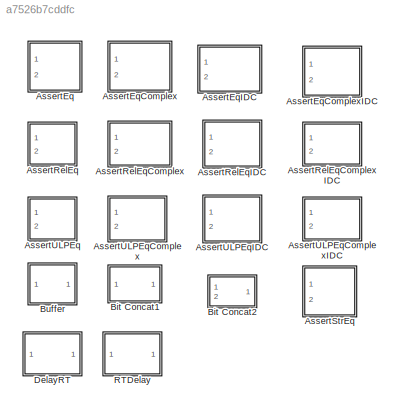
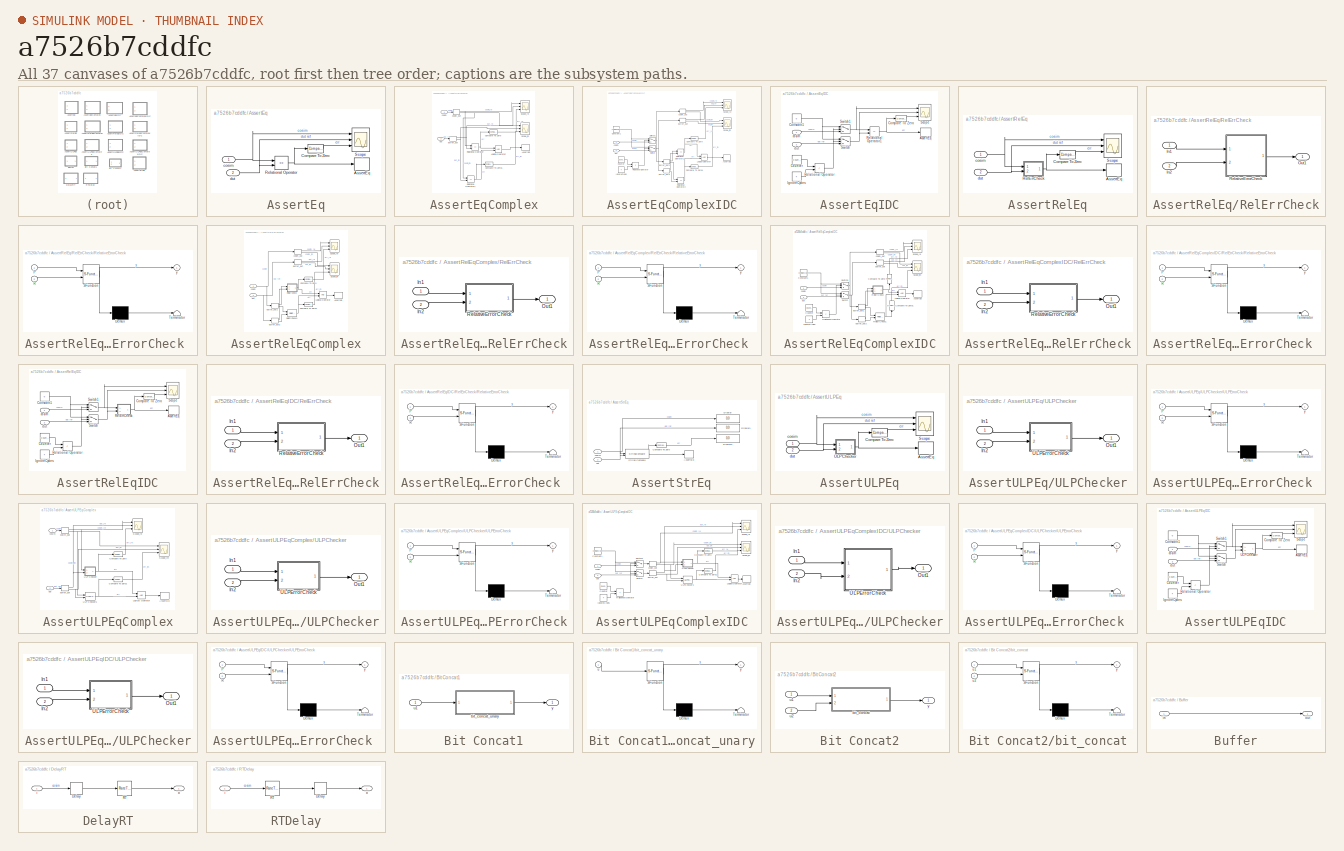
[diagram: thumbnail index - all 37 canvases of the model, root first then tree order]
MODEL slx_a7526b7cddfc
KIND library
CONFIG AbsTol = auto
CONFIG EnableMultiTasking = on
CONFIG FixedStep = 1
CONFIG MaxStep = auto
CONFIG MinStep = auto
CONFIG RelTol = 1e-3
CONFIG SampleTimeConstraint = Unconstrained
CONFIG Solver = FixedStepDiscrete
CONFIG SolverName = FixedStepDiscrete
CONFIG StartTime = 0.0
CONFIG StopTime = 10.0
BLOCK [SubSystem] AssertEq
  Ports = [2]
  RequestExecContextInheritance = off
BLOCK [Assertion] AssertEq/AssertEq
  StopWhenAssertionFail = off
BLOCK [Reference] AssertEq/Compare To Zero  REF=simulink/Logic and Bit
Operations/Compare
To Zero
  Ports = [1, 1]
  SourceBlock = simulink/Logic and Bit\nOperations/Compare\nTo Zero
  SourceProductBaseCode = SL
  SourceProductName = Simulink
  SourceType = Compare To Zero
BLOCK [RelationalOperator] AssertEq/Relational Operator
  InputSameDT = off
  Operator = ==
  OutDataTypeStr = boolean
  Ports = [2, 1]
BLOCK [Scope] AssertEq/Scope
  Floating = off
  NumInputPorts = 3
  Ports = [3]
  ScopeSpecificationString = Simulink.scopes.TimeScopeBlockCfg('CurrentConfiguration', extmgr.ConfigurationSet(extmgr.Configuration('Core','General UI',true,'MessageLogAutoOpenMode','for warn/fail messages','ShowCloseAll',true,'ShowBringAllForward',true),extmgr.Configuration('Core','Source UI',true,'PlaybackToolbar',true),extmgr.Configuration('Sources','WiredSimulink',true,'PointsPerSignal',50000,'DataLoggingDecimation','1','...<+3251ch>
BLOCK [Inport] AssertEq/cosim
  IconDisplay = Port number
BLOCK [Inport] AssertEq/dut
  IconDisplay = Port number
  Port = 2
BLOCK [SubSystem] AssertEqComplex
  Ports = [2]
  RequestExecContextInheritance = off
BLOCK [Assertion] AssertEqComplex/AssertEq
  StopWhenAssertionFail = off
BLOCK [Reference] AssertEqComplex/Compare To Zero  REF=simulink/Logic and Bit
Operations/Compare
To Zero
  Ports = [1, 1]
  SourceBlock = simulink/Logic and Bit\nOperations/Compare\nTo Zero
  SourceProductBaseCode = SL
  SourceProductName = Simulink
  SourceType = Compare To Zero
BLOCK [Reference] AssertEqComplex/Compare To Zero1  REF=simulink/Logic and Bit
Operations/Compare
To Zero
  Ports = [1, 1]
  SourceBlock = simulink/Logic and Bit\nOperations/Compare\nTo Zero
  SourceProductBaseCode = SL
  SourceProductName = Simulink
  SourceType = Compare To Zero
BLOCK [Logic] AssertEqComplex/Logical Operator
  AllPortsSameDT = off
  OutDataTypeStr = boolean
  Ports = [2, 1]
BLOCK [RelationalOperator] AssertEqComplex/Relational Operator
  InputSameDT = off
  Operator = ==
  OutDataTypeStr = boolean
  Ports = [2, 1]
BLOCK [RelationalOperator] AssertEqComplex/Relational Operator1
  InputSameDT = off
  Operator = ==
  OutDataTypeStr = boolean
  Ports = [2, 1]
BLOCK [Scope] AssertEqComplex/Scope_im
  Floating = off
  NumInputPorts = 3
  Ports = [3]
  ScopeSpecificationString = Simulink.scopes.TimeScopeBlockCfg('CurrentConfiguration', extmgr.ConfigurationSet(extmgr.Configuration('Core','General UI',true,'MessageLogAutoOpenMode','for warn/fail messages','ShowCloseAll',true,'ShowBringAllForward',true),extmgr.Configuration('Core','Source UI',true,'PlaybackToolbar',true),extmgr.Configuration('Sources','WiredSimulink',true,'PointsPerSignal',50000,'DataLoggingVariableName','Sc...<+3290ch>  <repeated x15 — deduplicated; at blocks: Scope_im, Scope_re, Scope>
BLOCK [Scope] AssertEqComplex/Scope_re
  Floating = off
  NumInputPorts = 3
  Ports = [3]
BLOCK [Inport] AssertEqComplex/cosim
  IconDisplay = Port number
BLOCK [ComplexToRealImag] AssertEqComplex/cosim_out
  Ports = [1, 2]
BLOCK [Inport] AssertEqComplex/dut
  IconDisplay = Port number
  Port = 2
BLOCK [ComplexToRealImag] AssertEqComplex/dutref_out
  Ports = [1, 2]
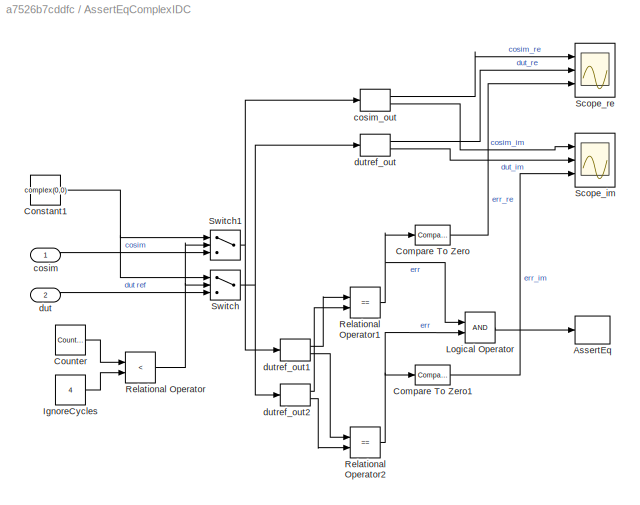
BLOCK [SubSystem] AssertEqComplexIDC
  Ports = [2]
  RequestExecContextInheritance = off
BLOCK [Assertion] AssertEqComplexIDC/AssertEq
  StopWhenAssertionFail = off
BLOCK [Reference] AssertEqComplexIDC/Compare To Zero  REF=simulink/Logic and Bit
Operations/Compare
To Zero
  Ports = [1, 1]
  SourceBlock = simulink/Logic and Bit\nOperations/Compare\nTo Zero
  SourceProductBaseCode = SL
  SourceProductName = Simulink
  SourceType = Compare To Zero
BLOCK [Reference] AssertEqComplexIDC/Compare To Zero1  REF=simulink/Logic and Bit
Operations/Compare
To Zero
  Ports = [1, 1]
  SourceBlock = simulink/Logic and Bit\nOperations/Compare\nTo Zero
  SourceProductBaseCode = SL
  SourceProductName = Simulink
  SourceType = Compare To Zero
BLOCK [Constant] AssertEqComplexIDC/Constant1
  OutDataTypeStr = Inherit: Inherit via back propagation
  SampleTime = -1
  Value = complex(0,0)
BLOCK [Reference] AssertEqComplexIDC/Counter  REF=simulink/Sources/Counter
Free-Running
  Ports = [0, 1]
  SourceBlock = simulink/Sources/Counter\nFree-Running
  SourceProductBaseCode = SL
  SourceProductName = Simulink
  SourceType = Counter Free-Running
BLOCK [Constant] AssertEqComplexIDC/IgnoreCycles
  OutDataTypeStr = Inherit: Inherit via back propagation
  SampleTime = -1
  Value = 4
BLOCK [Logic] AssertEqComplexIDC/Logical Operator
  AllPortsSameDT = off
  OutDataTypeStr = boolean
  Ports = [2, 1]
BLOCK [RelationalOperator] AssertEqComplexIDC/Relational Operator
  InputSameDT = off
  Operator = <
  OutDataTypeStr = boolean
  Ports = [2, 1]
BLOCK [RelationalOperator] AssertEqComplexIDC/Relational Operator1
  InputSameDT = off
  Operator = ==
  OutDataTypeStr = boolean
  Ports = [2, 1]
BLOCK [RelationalOperator] AssertEqComplexIDC/Relational Operator2
  InputSameDT = off
  Operator = ==
  OutDataTypeStr = boolean
  Ports = [2, 1]
BLOCK [Scope] AssertEqComplexIDC/Scope_im
  Floating = off
  NumInputPorts = 3
  Ports = [3]
BLOCK [Scope] AssertEqComplexIDC/Scope_re
  Floating = off
  NumInputPorts = 3
  Ports = [3]
BLOCK [Switch] AssertEqComplexIDC/Switch
  Criteria = u2 ~= 0
  InputSameDT = off
  SaturateOnIntegerOverflow = off
BLOCK [Switch] AssertEqComplexIDC/Switch1
  Criteria = u2 ~= 0
  InputSameDT = off
  SaturateOnIntegerOverflow = off
BLOCK [Inport] AssertEqComplexIDC/cosim
  IconDisplay = Port number
BLOCK [ComplexToRealImag] AssertEqComplexIDC/cosim_out
  Ports = [1, 2]
BLOCK [Inport] AssertEqComplexIDC/dut
  IconDisplay = Port number
  Port = 2
BLOCK [ComplexToRealImag] AssertEqComplexIDC/dutref_out
  Ports = [1, 2]
BLOCK [ComplexToRealImag] AssertEqComplexIDC/dutref_out1
  Ports = [1, 2]
BLOCK [ComplexToRealImag] AssertEqComplexIDC/dutref_out2
  Ports = [1, 2]
BLOCK [SubSystem] AssertEqIDC
  Ports = [2]
  RequestExecContextInheritance = off
BLOCK [Assertion] AssertEqIDC/AssertEq
  StopWhenAssertionFail = off
BLOCK [Reference] AssertEqIDC/Compare To Zero  REF=simulink/Logic and Bit
Operations/Compare
To Zero
  Ports = [1, 1]
  SourceBlock = simulink/Logic and Bit\nOperations/Compare\nTo Zero
  SourceProductBaseCode = SL
  SourceProductName = Simulink
  SourceType = Compare To Zero
BLOCK [Constant] AssertEqIDC/Constant1
  OutDataTypeStr = Inherit: Inherit via back propagation
  SampleTime = -1
  Value = 0
BLOCK [Reference] AssertEqIDC/Counter  REF=simulink/Sources/Counter
Free-Running
  Ports = [0, 1]
  SourceBlock = simulink/Sources/Counter\nFree-Running
  SourceProductBaseCode = SL
  SourceProductName = Simulink
  SourceType = Counter Free-Running
BLOCK [Constant] AssertEqIDC/IgnoreCycles
  OutDataTypeStr = Inherit: Inherit via back propagation
  SampleTime = -1
  Value = 4
BLOCK [RelationalOperator] AssertEqIDC/Relational Operator
  InputSameDT = off
  Operator = <
  OutDataTypeStr = boolean
  Ports = [2, 1]
BLOCK [RelationalOperator] AssertEqIDC/Relational Operator1
  InputSameDT = off
  Operator = ==
  OutDataTypeStr = boolean
  Ports = [2, 1]
BLOCK [Scope] AssertEqIDC/Scope
  Floating = off
  NumInputPorts = 3
  Ports = [3]
BLOCK [Switch] AssertEqIDC/Switch
  Criteria = u2 ~= 0
  InputSameDT = off
  SaturateOnIntegerOverflow = off
BLOCK [Switch] AssertEqIDC/Switch1
  Criteria = u2 ~= 0
  InputSameDT = off
  SaturateOnIntegerOverflow = off
BLOCK [Inport] AssertEqIDC/cosim
  IconDisplay = Port number
BLOCK [Inport] AssertEqIDC/dut
  IconDisplay = Port number
  Port = 2
BLOCK [SubSystem] AssertRelEq
  Ports = [2]
  RequestExecContextInheritance = off
BLOCK [Assertion] AssertRelEq/AssertEq
  StopWhenAssertionFail = off
BLOCK [Reference] AssertRelEq/Compare To Zero  REF=simulink/Logic and Bit
Operations/Compare
To Zero
  Ports = [1, 1]
  SourceBlock = simulink/Logic and Bit\nOperations/Compare\nTo Zero
  SourceProductBaseCode = SL
  SourceProductName = Simulink
  SourceType = Compare To Zero
BLOCK [SubSystem] AssertRelEq/RelErrCheck
  Ports = [2, 1]
  RequestExecContextInheritance = off
BLOCK [Inport] AssertRelEq/RelErrCheck/In1
  IconDisplay = Port number
BLOCK [Inport] AssertRelEq/RelErrCheck/In2
  IconDisplay = Port number
  Port = 2
BLOCK [Outport] AssertRelEq/RelErrCheck/Out1
  IconDisplay = Port number
BLOCK [SubSystem] AssertRelEq/RelErrCheck/RelativeErrorCheck 
  ErrorFcn = Stateflow.Translate.translate
  PermitHierarchicalResolution = ExplicitOnly
  Ports = [2, 1]
  RequestExecContextInheritance = off
  SFBlockType = MATLAB Function
  TreatAsAtomicUnit = on
BLOCK [Demux] AssertRelEq/RelErrCheck/RelativeErrorCheck / Demux 
  Outputs = 1
  Ports = [1, 1]
BLOCK [S-Function] AssertRelEq/RelErrCheck/RelativeErrorCheck / SFunction 
  EnableBusSupport = off
  FunctionName = sf_sfun
  Parameters = ToleranceValue
  PortCounts = [2 2]
  Ports = [2, 2]
  SFcnIsStateOwnerBlock = off
  SFunctionDeploymentMode = off
  Tag = Stateflow S-Function hdlmdlgenlib 8
BLOCK [Terminator] AssertRelEq/RelErrCheck/RelativeErrorCheck / Terminator 
BLOCK [Inport] AssertRelEq/RelErrCheck/RelativeErrorCheck /P
  IconDisplay = Port number
BLOCK [Inport] AssertRelEq/RelErrCheck/RelativeErrorCheck /R
  IconDisplay = Port number
  Port = 2
BLOCK [Outport] AssertRelEq/RelErrCheck/RelativeErrorCheck /y
  IconDisplay = Port number
BLOCK [Scope] AssertRelEq/Scope
  Floating = off
  NumInputPorts = 3
  Ports = [3]
  ScopeSpecificationString = Simulink.scopes.TimeScopeBlockCfg('CurrentConfiguration', extmgr.ConfigurationSet(extmgr.Configuration('Core','General UI',true,'MessageLogAutoOpenMode','for warn/fail messages','ShowCloseAll',true,'ShowBringAllForward',true),extmgr.Configuration('Core','Source UI',true,'PlaybackToolbar',true),extmgr.Configuration('Sources','WiredSimulink',true,'PointsPerSignal',50000,'DataLoggingDecimation','1','...<+3295ch>
BLOCK [Inport] AssertRelEq/cosim
  IconDisplay = Port number
BLOCK [Inport] AssertRelEq/dut
  IconDisplay = Port number
  Port = 2
BLOCK [SubSystem] AssertRelEqComplex
  Ports = [2]
  RequestExecContextInheritance = off
BLOCK [Assertion] AssertRelEqComplex/AssertEq
  StopWhenAssertionFail = off
BLOCK [Reference] AssertRelEqComplex/Compare To Zero  REF=simulink/Logic and Bit
Operations/Compare
To Zero
  Ports = [1, 1]
  SourceBlock = simulink/Logic and Bit\nOperations/Compare\nTo Zero
  SourceProductBaseCode = SL
  SourceProductName = Simulink
  SourceType = Compare To Zero
BLOCK [Reference] AssertRelEqComplex/Compare To Zero1  REF=simulink/Logic and Bit
Operations/Compare
To Zero
  Ports = [1, 1]
  SourceBlock = simulink/Logic and Bit\nOperations/Compare\nTo Zero
  SourceProductBaseCode = SL
  SourceProductName = Simulink
  SourceType = Compare To Zero
BLOCK [Logic] AssertRelEqComplex/Logical Operator
  AllPortsSameDT = off
  OutDataTypeStr = boolean
  Ports = [2, 1]
BLOCK [SubSystem] AssertRelEqComplex/RelErrCheck
  Ports = [2, 1]
  RequestExecContextInheritance = off
BLOCK [Inport] AssertRelEqComplex/RelErrCheck/In1
  IconDisplay = Port number
BLOCK [Inport] AssertRelEqComplex/RelErrCheck/In2
  IconDisplay = Port number
  Port = 2
BLOCK [Outport] AssertRelEqComplex/RelErrCheck/Out1
  IconDisplay = Port number
BLOCK [SubSystem] AssertRelEqComplex/RelErrCheck/RelativeErrorCheck 
  ErrorFcn = Stateflow.Translate.translate
  PermitHierarchicalResolution = ExplicitOnly
  Ports = [2, 1]
  RequestExecContextInheritance = off
  SFBlockType = MATLAB Function
  TreatAsAtomicUnit = on
BLOCK [Demux] AssertRelEqComplex/RelErrCheck/RelativeErrorCheck / Demux 
  Outputs = 1
  Ports = [1, 1]
BLOCK [S-Function] AssertRelEqComplex/RelErrCheck/RelativeErrorCheck / SFunction 
  EnableBusSupport = off
  FunctionName = sf_sfun
  Parameters = ToleranceValue
  PortCounts = [2 2]
  Ports = [2, 2]
  SFcnIsStateOwnerBlock = off
  SFunctionDeploymentMode = off
  Tag = Stateflow S-Function hdlmdlgenlib 7
BLOCK [Terminator] AssertRelEqComplex/RelErrCheck/RelativeErrorCheck / Terminator 
BLOCK [Inport] AssertRelEqComplex/RelErrCheck/RelativeErrorCheck /P
  IconDisplay = Port number
BLOCK [Inport] AssertRelEqComplex/RelErrCheck/RelativeErrorCheck /R
  IconDisplay = Port number
  Port = 2
BLOCK [Outport] AssertRelEqComplex/RelErrCheck/RelativeErrorCheck /y
  IconDisplay = Port number
BLOCK [Reference] AssertRelEqComplex/RelErrCheck1  REF=$bdroot/AssertRelEqComplex/RelErrCheck
  Ports = [2, 1]
  SourceBlock = $bdroot/AssertRelEqComplex/RelErrCheck
  SourceType = SubSystem
BLOCK [Scope] AssertRelEqComplex/Scope_im
  Floating = off
  NumInputPorts = 3
  Ports = [3]
BLOCK [Scope] AssertRelEqComplex/Scope_re
  Floating = off
  NumInputPorts = 3
  Ports = [3]
BLOCK [Inport] AssertRelEqComplex/cosim
  IconDisplay = Port number
BLOCK [ComplexToRealImag] AssertRelEqComplex/cosim_out
  Ports = [1, 2]
BLOCK [Inport] AssertRelEqComplex/dut
  IconDisplay = Port number
  Port = 2
BLOCK [ComplexToRealImag] AssertRelEqComplex/dutref_out
  Ports = [1, 2]
BLOCK [ComplexToRealImag] AssertRelEqComplex/dutref_out1
  Ports = [1, 2]
BLOCK [ComplexToRealImag] AssertRelEqComplex/dutref_out2
  Ports = [1, 2]
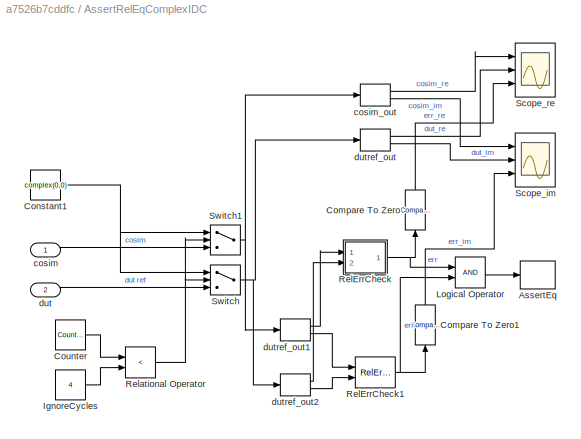
BLOCK [SubSystem] AssertRelEqComplexIDC
  Ports = [2]
  RequestExecContextInheritance = off
BLOCK [Assertion] AssertRelEqComplexIDC/AssertEq
  StopWhenAssertionFail = off
BLOCK [Reference] AssertRelEqComplexIDC/Compare To Zero  REF=simulink/Logic and Bit
Operations/Compare
To Zero
  Ports = [1, 1]
  SourceBlock = simulink/Logic and Bit\nOperations/Compare\nTo Zero
  SourceProductBaseCode = SL
  SourceProductName = Simulink
  SourceType = Compare To Zero
BLOCK [Reference] AssertRelEqComplexIDC/Compare To Zero1  REF=simulink/Logic and Bit
Operations/Compare
To Zero
  Ports = [1, 1]
  SourceBlock = simulink/Logic and Bit\nOperations/Compare\nTo Zero
  SourceProductBaseCode = SL
  SourceProductName = Simulink
  SourceType = Compare To Zero
BLOCK [Constant] AssertRelEqComplexIDC/Constant1
  OutDataTypeStr = Inherit: Inherit via back propagation
  SampleTime = -1
  Value = complex(0,0)
BLOCK [Reference] AssertRelEqComplexIDC/Counter  REF=simulink/Sources/Counter
Free-Running
  Ports = [0, 1]
  SourceBlock = simulink/Sources/Counter\nFree-Running
  SourceProductBaseCode = SL
  SourceProductName = Simulink
  SourceType = Counter Free-Running
BLOCK [Constant] AssertRelEqComplexIDC/IgnoreCycles
  OutDataTypeStr = Inherit: Inherit via back propagation
  SampleTime = -1
  Value = 4
BLOCK [Logic] AssertRelEqComplexIDC/Logical Operator
  AllPortsSameDT = off
  OutDataTypeStr = boolean
  Ports = [2, 1]
BLOCK [SubSystem] AssertRelEqComplexIDC/RelErrCheck
  Ports = [2, 1]
  RequestExecContextInheritance = off
BLOCK [Inport] AssertRelEqComplexIDC/RelErrCheck/In1
  IconDisplay = Port number
BLOCK [Inport] AssertRelEqComplexIDC/RelErrCheck/In2
  IconDisplay = Port number
  Port = 2
BLOCK [Outport] AssertRelEqComplexIDC/RelErrCheck/Out1
  IconDisplay = Port number
BLOCK [SubSystem] AssertRelEqComplexIDC/RelErrCheck/RelativeErrorCheck 
  ErrorFcn = Stateflow.Translate.translate
  PermitHierarchicalResolution = ExplicitOnly
  Ports = [2, 1]
  RequestExecContextInheritance = off
  SFBlockType = MATLAB Function
  TreatAsAtomicUnit = on
BLOCK [Demux] AssertRelEqComplexIDC/RelErrCheck/RelativeErrorCheck / Demux 
  Outputs = 1
  Ports = [1, 1]
BLOCK [S-Function] AssertRelEqComplexIDC/RelErrCheck/RelativeErrorCheck / SFunction 
  EnableBusSupport = off
  FunctionName = sf_sfun
  Parameters = ToleranceValue
  PortCounts = [2 2]
  Ports = [2, 2]
  SFcnIsStateOwnerBlock = off
  SFunctionDeploymentMode = off
  Tag = Stateflow S-Function hdlmdlgenlib 10
BLOCK [Terminator] AssertRelEqComplexIDC/RelErrCheck/RelativeErrorCheck / Terminator 
BLOCK [Inport] AssertRelEqComplexIDC/RelErrCheck/RelativeErrorCheck /P
  IconDisplay = Port number
BLOCK [Inport] AssertRelEqComplexIDC/RelErrCheck/RelativeErrorCheck /R
  IconDisplay = Port number
  Port = 2
BLOCK [Outport] AssertRelEqComplexIDC/RelErrCheck/RelativeErrorCheck /y
  IconDisplay = Port number
BLOCK [Reference] AssertRelEqComplexIDC/RelErrCheck1  REF=$bdroot/AssertRelEqComplexIDC/RelErrCheck
  Ports = [2, 1]
  SourceBlock = $bdroot/AssertRelEqComplexIDC/RelErrCheck
  SourceType = SubSystem
BLOCK [RelationalOperator] AssertRelEqComplexIDC/Relational Operator
  InputSameDT = off
  Operator = <
  OutDataTypeStr = boolean
  Ports = [2, 1]
BLOCK [Scope] AssertRelEqComplexIDC/Scope_im
  Floating = off
  NumInputPorts = 3
  Ports = [3]
BLOCK [Scope] AssertRelEqComplexIDC/Scope_re
  Floating = off
  NumInputPorts = 3
  Ports = [3]
BLOCK [Switch] AssertRelEqComplexIDC/Switch
  Criteria = u2 ~= 0
  InputSameDT = off
  SaturateOnIntegerOverflow = off
BLOCK [Switch] AssertRelEqComplexIDC/Switch1
  Criteria = u2 ~= 0
  InputSameDT = off
  SaturateOnIntegerOverflow = off
BLOCK [Inport] AssertRelEqComplexIDC/cosim
  IconDisplay = Port number
BLOCK [ComplexToRealImag] AssertRelEqComplexIDC/cosim_out
  Ports = [1, 2]
BLOCK [Inport] AssertRelEqComplexIDC/dut
  IconDisplay = Port number
  Port = 2
BLOCK [ComplexToRealImag] AssertRelEqComplexIDC/dutref_out
  Ports = [1, 2]
BLOCK [ComplexToRealImag] AssertRelEqComplexIDC/dutref_out1
  Ports = [1, 2]
BLOCK [ComplexToRealImag] AssertRelEqComplexIDC/dutref_out2
  Ports = [1, 2]
BLOCK [SubSystem] AssertRelEqIDC
  Ports = [2]
  RequestExecContextInheritance = off
BLOCK [Assertion] AssertRelEqIDC/AssertEq
  StopWhenAssertionFail = off
BLOCK [Reference] AssertRelEqIDC/Compare To Zero  REF=simulink/Logic and Bit
Operations/Compare
To Zero
  Ports = [1, 1]
  SourceBlock = simulink/Logic and Bit\nOperations/Compare\nTo Zero
  SourceProductBaseCode = SL
  SourceProductName = Simulink
  SourceType = Compare To Zero
BLOCK [Constant] AssertRelEqIDC/Constant1
  OutDataTypeStr = Inherit: Inherit via back propagation
  SampleTime = -1
  Value = 0
BLOCK [Reference] AssertRelEqIDC/Counter  REF=simulink/Sources/Counter
Free-Running
  Ports = [0, 1]
  SourceBlock = simulink/Sources/Counter\nFree-Running
  SourceProductBaseCode = SL
  SourceProductName = Simulink
  SourceType = Counter Free-Running
BLOCK [Constant] AssertRelEqIDC/IgnoreCycles
  OutDataTypeStr = Inherit: Inherit via back propagation
  SampleTime = -1
  Value = 4
BLOCK [SubSystem] AssertRelEqIDC/RelErrCheck
  Ports = [2, 1]
  RequestExecContextInheritance = off
BLOCK [Inport] AssertRelEqIDC/RelErrCheck/In1
  IconDisplay = Port number
BLOCK [Inport] AssertRelEqIDC/RelErrCheck/In2
  IconDisplay = Port number
  Port = 2
BLOCK [Outport] AssertRelEqIDC/RelErrCheck/Out1
  IconDisplay = Port number
BLOCK [SubSystem] AssertRelEqIDC/RelErrCheck/RelativeErrorCheck 
  ErrorFcn = Stateflow.Translate.translate
  PermitHierarchicalResolution = ExplicitOnly
  Ports = [2, 1]
  RequestExecContextInheritance = off
  SFBlockType = MATLAB Function
  TreatAsAtomicUnit = on
BLOCK [Demux] AssertRelEqIDC/RelErrCheck/RelativeErrorCheck / Demux 
  Outputs = 1
  Ports = [1, 1]
BLOCK [S-Function] AssertRelEqIDC/RelErrCheck/RelativeErrorCheck / SFunction 
  EnableBusSupport = off
  FunctionName = sf_sfun
  Parameters = ToleranceValue
  PortCounts = [2 2]
  Ports = [2, 2]
  SFcnIsStateOwnerBlock = off
  SFunctionDeploymentMode = off
  Tag = Stateflow S-Function hdlmdlgenlib 9
BLOCK [Terminator] AssertRelEqIDC/RelErrCheck/RelativeErrorCheck / Terminator 
BLOCK [Inport] AssertRelEqIDC/RelErrCheck/RelativeErrorCheck /P
  IconDisplay = Port number
BLOCK [Inport] AssertRelEqIDC/RelErrCheck/RelativeErrorCheck /R
  IconDisplay = Port number
  Port = 2
BLOCK [Outport] AssertRelEqIDC/RelErrCheck/RelativeErrorCheck /y
  IconDisplay = Port number
BLOCK [RelationalOperator] AssertRelEqIDC/Relational Operator
  InputSameDT = off
  Operator = <
  OutDataTypeStr = boolean
  Ports = [2, 1]
BLOCK [Scope] AssertRelEqIDC/Scope
  Floating = off
  NumInputPorts = 3
  Ports = [3]
BLOCK [Switch] AssertRelEqIDC/Switch
  Criteria = u2 ~= 0
  InputSameDT = off
  SaturateOnIntegerOverflow = off
BLOCK [Switch] AssertRelEqIDC/Switch1
  Criteria = u2 ~= 0
  InputSameDT = off
  SaturateOnIntegerOverflow = off
BLOCK [Inport] AssertRelEqIDC/cosim
  IconDisplay = Port number
BLOCK [Inport] AssertRelEqIDC/dut
  IconDisplay = Port number
  Port = 2
BLOCK [SubSystem] AssertStrEq
  AncestorBlock = hdlmdlgenlib/AssertEq
  Ports = [2]
  RequestExecContextInheritance = off
BLOCK [Assertion] AssertStrEq/AssertEq
  StopWhenAssertionFail = off
BLOCK [Reference] AssertStrEq/Compare To Zero  REF=simulink/Logic and Bit
Operations/Compare
To Zero
  Ports = [1, 1]
  SourceBlock = simulink/Logic and Bit\nOperations/Compare\nTo Zero
  SourceProductBaseCode = SL
  SourceProductName = Simulink
  SourceType = Compare To Zero
BLOCK [Display] AssertStrEq/Display
  Decimation = 1
  Ports = [1]
BLOCK [Display] AssertStrEq/Display1
  Decimation = 1
  Ports = [1]
BLOCK [Display] AssertStrEq/Display2
  Decimation = 1
  Ports = [1]
BLOCK [StringCompare] AssertStrEq/String Compare
BLOCK [Inport] AssertStrEq/cosim
  IconDisplay = Port number
BLOCK [Inport] AssertStrEq/dut
  IconDisplay = Port number
  Port = 2
BLOCK [SubSystem] AssertULPEq
  Ports = [2]
  RequestExecContextInheritance = off
BLOCK [Assertion] AssertULPEq/AssertEq
  StopWhenAssertionFail = off
BLOCK [Reference] AssertULPEq/Compare To Zero  REF=simulink/Logic and Bit
Operations/Compare
To Zero
  Ports = [1, 1]
  SourceBlock = simulink/Logic and Bit\nOperations/Compare\nTo Zero
  SourceProductBaseCode = SL
  SourceProductName = Simulink
  SourceType = Compare To Zero
BLOCK [Scope] AssertULPEq/Scope
  Floating = off
  NumInputPorts = 3
  Ports = [3]
  ScopeSpecificationString = Simulink.scopes.TimeScopeBlockCfg('CurrentConfiguration', extmgr.ConfigurationSet(extmgr.Configuration('Core','General UI',true,'MessageLogAutoOpenMode','for warn/fail messages','ShowCloseAll',true,'ShowBringAllForward',true),extmgr.Configuration('Core','Source UI',true,'PlaybackToolbar',true),extmgr.Configuration('Sources','WiredSimulink',true,'PointsPerSignal',50000,'DataLoggingDecimation','1','...<+3295ch>
BLOCK [SubSystem] AssertULPEq/ULPChecker
  Ports = [2, 1]
  RequestExecContextInheritance = off
BLOCK [Inport] AssertULPEq/ULPChecker/In1
  IconDisplay = Port number
BLOCK [Inport] AssertULPEq/ULPChecker/In2
  IconDisplay = Port number
  Port = 2
BLOCK [Outport] AssertULPEq/ULPChecker/Out1
  IconDisplay = Port number
BLOCK [SubSystem] AssertULPEq/ULPChecker/ULPErrorCheck 
  ErrorFcn = Stateflow.Translate.translate
  PermitHierarchicalResolution = ExplicitOnly
  Ports = [2, 1]
  RequestExecContextInheritance = off
  SFBlockType = MATLAB Function
  TreatAsAtomicUnit = on
BLOCK [Demux] AssertULPEq/ULPChecker/ULPErrorCheck / Demux 
  Outputs = 1
  Ports = [1, 1]
BLOCK [S-Function] AssertULPEq/ULPChecker/ULPErrorCheck / SFunction 
  EnableBusSupport = off
  FunctionName = sf_sfun
  Parameters = ToleranceValue
  PortCounts = [2 2]
  Ports = [2, 2]
  SFcnIsStateOwnerBlock = off
  SFunctionDeploymentMode = off
  Tag = Stateflow S-Function hdlmdlgenlib 11
BLOCK [Terminator] AssertULPEq/ULPChecker/ULPErrorCheck / Terminator 
BLOCK [Inport] AssertULPEq/ULPChecker/ULPErrorCheck /P
  IconDisplay = Port number
BLOCK [Inport] AssertULPEq/ULPChecker/ULPErrorCheck /R
  IconDisplay = Port number
  Port = 2
BLOCK [Outport] AssertULPEq/ULPChecker/ULPErrorCheck /y
  IconDisplay = Port number
BLOCK [Inport] AssertULPEq/cosim
  IconDisplay = Port number
BLOCK [Inport] AssertULPEq/dut
  IconDisplay = Port number
  Port = 2
BLOCK [SubSystem] AssertULPEqComplex
  Ports = [2]
  RequestExecContextInheritance = off
BLOCK [Assertion] AssertULPEqComplex/AssertEq
  StopWhenAssertionFail = off
BLOCK [Reference] AssertULPEqComplex/Compare To Zero  REF=simulink/Logic and Bit
Operations/Compare
To Zero
  Ports = [1, 1]
  SourceBlock = simulink/Logic and Bit\nOperations/Compare\nTo Zero
  SourceProductBaseCode = SL
  SourceProductName = Simulink
  SourceType = Compare To Zero
BLOCK [Reference] AssertULPEqComplex/Compare To Zero1  REF=simulink/Logic and Bit
Operations/Compare
To Zero
  Ports = [1, 1]
  SourceBlock = simulink/Logic and Bit\nOperations/Compare\nTo Zero
  SourceProductBaseCode = SL
  SourceProductName = Simulink
  SourceType = Compare To Zero
BLOCK [Logic] AssertULPEqComplex/Logical Operator
  AllPortsSameDT = off
  OutDataTypeStr = boolean
  Ports = [2, 1]
BLOCK [Scope] AssertULPEqComplex/Scope_im
  Floating = off
  NumInputPorts = 3
  Ports = [3]
BLOCK [Scope] AssertULPEqComplex/Scope_re
  Floating = off
  NumInputPorts = 3
  Ports = [3]
BLOCK [SubSystem] AssertULPEqComplex/ULPChecker
  Ports = [2, 1]
  RequestExecContextInheritance = off
BLOCK [Inport] AssertULPEqComplex/ULPChecker/In1
  IconDisplay = Port number
BLOCK [Inport] AssertULPEqComplex/ULPChecker/In2
  IconDisplay = Port number
  Port = 2
BLOCK [Outport] AssertULPEqComplex/ULPChecker/Out1
  IconDisplay = Port number
BLOCK [SubSystem] AssertULPEqComplex/ULPChecker/ULPErrorCheck
  ErrorFcn = Stateflow.Translate.translate
  PermitHierarchicalResolution = ExplicitOnly
  Ports = [2, 1]
  RequestExecContextInheritance = off
  SFBlockType = MATLAB Function
  TreatAsAtomicUnit = on
BLOCK [Demux] AssertULPEqComplex/ULPChecker/ULPErrorCheck/ Demux 
  Outputs = 1
  Ports = [1, 1]
BLOCK [S-Function] AssertULPEqComplex/ULPChecker/ULPErrorCheck/ SFunction 
  EnableBusSupport = off
  FunctionName = sf_sfun
  Parameters = ToleranceValue
  PortCounts = [2 2]
  Ports = [2, 2]
  SFcnIsStateOwnerBlock = off
  SFunctionDeploymentMode = off
  Tag = Stateflow S-Function hdlmdlgenlib 2
BLOCK [Terminator] AssertULPEqComplex/ULPChecker/ULPErrorCheck/ Terminator 
BLOCK [Inport] AssertULPEqComplex/ULPChecker/ULPErrorCheck/P
  IconDisplay = Port number
BLOCK [Inport] AssertULPEqComplex/ULPChecker/ULPErrorCheck/R
  IconDisplay = Port number
  Port = 2
BLOCK [Outport] AssertULPEqComplex/ULPChecker/ULPErrorCheck/y
  IconDisplay = Port number
BLOCK [Reference] AssertULPEqComplex/ULPChecker1  REF=$bdroot/AssertULPEqComplex/ULPChecker
  Ports = [2, 1]
  SourceBlock = $bdroot/AssertULPEqComplex/ULPChecker
  SourceType = SubSystem
BLOCK [Inport] AssertULPEqComplex/cosim
  IconDisplay = Port number
BLOCK [ComplexToRealImag] AssertULPEqComplex/cosim_out
  Ports = [1, 2]
BLOCK [Inport] AssertULPEqComplex/dut
  IconDisplay = Port number
  Port = 2
BLOCK [ComplexToRealImag] AssertULPEqComplex/dutref_out
  Ports = [1, 2]
BLOCK [SubSystem] AssertULPEqComplexIDC
  Ports = [2]
  RequestExecContextInheritance = off
BLOCK [Assertion] AssertULPEqComplexIDC/AssertEq
  StopWhenAssertionFail = off
BLOCK [Reference] AssertULPEqComplexIDC/Compare To Zero  REF=simulink/Logic and Bit
Operations/Compare
To Zero
  Ports = [1, 1]
  SourceBlock = simulink/Logic and Bit\nOperations/Compare\nTo Zero
  SourceProductBaseCode = SL
  SourceProductName = Simulink
  SourceType = Compare To Zero
BLOCK [Reference] AssertULPEqComplexIDC/Compare To Zero1  REF=simulink/Logic and Bit
Operations/Compare
To Zero
  Ports = [1, 1]
  SourceBlock = simulink/Logic and Bit\nOperations/Compare\nTo Zero
  SourceProductBaseCode = SL
  SourceProductName = Simulink
  SourceType = Compare To Zero
BLOCK [Constant] AssertULPEqComplexIDC/Constant1
  OutDataTypeStr = Inherit: Inherit via back propagation
  SampleTime = -1
  Value = complex(0,0)
BLOCK [Reference] AssertULPEqComplexIDC/Counter  REF=simulink/Sources/Counter
Free-Running
  Ports = [0, 1]
  SourceBlock = simulink/Sources/Counter\nFree-Running
  SourceProductBaseCode = SL
  SourceProductName = Simulink
  SourceType = Counter Free-Running
BLOCK [Constant] AssertULPEqComplexIDC/IgnoreCycles
  OutDataTypeStr = Inherit: Inherit via back propagation
  SampleTime = -1
  Value = 4
BLOCK [Logic] AssertULPEqComplexIDC/Logical Operator
  AllPortsSameDT = off
  OutDataTypeStr = boolean
  Ports = [2, 1]
BLOCK [RelationalOperator] AssertULPEqComplexIDC/Relational Operator
  InputSameDT = off
  Operator = <
  OutDataTypeStr = boolean
  Ports = [2, 1]
BLOCK [Scope] AssertULPEqComplexIDC/Scope_im
  Floating = off
  NumInputPorts = 3
  Ports = [3]
BLOCK [Scope] AssertULPEqComplexIDC/Scope_re
  Floating = off
  NumInputPorts = 3
  Ports = [3]
BLOCK [Switch] AssertULPEqComplexIDC/Switch
  Criteria = u2 ~= 0
  InputSameDT = off
  SaturateOnIntegerOverflow = off
BLOCK [Switch] AssertULPEqComplexIDC/Switch1
  Criteria = u2 ~= 0
  InputSameDT = off
  SaturateOnIntegerOverflow = off
BLOCK [SubSystem] AssertULPEqComplexIDC/ULPChecker
  Ports = [2, 1]
  RequestExecContextInheritance = off
BLOCK [Inport] AssertULPEqComplexIDC/ULPChecker/In1
  IconDisplay = Port number
BLOCK [Inport] AssertULPEqComplexIDC/ULPChecker/In2
  IconDisplay = Port number
  Port = 2
BLOCK [Outport] AssertULPEqComplexIDC/ULPChecker/Out1
  IconDisplay = Port number
BLOCK [SubSystem] AssertULPEqComplexIDC/ULPChecker/ULPErrorCheck 
  ErrorFcn = Stateflow.Translate.translate
  PermitHierarchicalResolution = ExplicitOnly
  Ports = [2, 1]
  RequestExecContextInheritance = off
  SFBlockType = MATLAB Function
  TreatAsAtomicUnit = on
BLOCK [Demux] AssertULPEqComplexIDC/ULPChecker/ULPErrorCheck / Demux 
  Outputs = 1
  Ports = [1, 1]
BLOCK [S-Function] AssertULPEqComplexIDC/ULPChecker/ULPErrorCheck / SFunction 
  EnableBusSupport = off
  FunctionName = sf_sfun
  Parameters = ToleranceValue
  PortCounts = [2 2]
  Ports = [2, 2]
  SFcnIsStateOwnerBlock = off
  SFunctionDeploymentMode = off
  Tag = Stateflow S-Function hdlmdlgenlib 4
BLOCK [Terminator] AssertULPEqComplexIDC/ULPChecker/ULPErrorCheck / Terminator 
BLOCK [Inport] AssertULPEqComplexIDC/ULPChecker/ULPErrorCheck /P
  IconDisplay = Port number
BLOCK [Inport] AssertULPEqComplexIDC/ULPChecker/ULPErrorCheck /R
  IconDisplay = Port number
  Port = 2
BLOCK [Outport] AssertULPEqComplexIDC/ULPChecker/ULPErrorCheck /y
  IconDisplay = Port number
BLOCK [Reference] AssertULPEqComplexIDC/ULPChecker1  REF=$bdroot/AssertULPEqComplexIDC/ULPChecker
  Ports = [2, 1]
  SourceBlock = $bdroot/AssertULPEqComplexIDC/ULPChecker
  SourceType = SubSystem
BLOCK [Inport] AssertULPEqComplexIDC/cosim
  IconDisplay = Port number
BLOCK [ComplexToRealImag] AssertULPEqComplexIDC/cosim_out
  Ports = [1, 2]
BLOCK [Inport] AssertULPEqComplexIDC/dut
  IconDisplay = Port number
  Port = 2
BLOCK [ComplexToRealImag] AssertULPEqComplexIDC/dutref_out
  Ports = [1, 2]
BLOCK [SubSystem] AssertULPEqIDC
  Ports = [2]
  RequestExecContextInheritance = off
BLOCK [Assertion] AssertULPEqIDC/AssertEq
  StopWhenAssertionFail = off
BLOCK [Reference] AssertULPEqIDC/Compare To Zero  REF=simulink/Logic and Bit
Operations/Compare
To Zero
  Ports = [1, 1]
  SourceBlock = simulink/Logic and Bit\nOperations/Compare\nTo Zero
  SourceProductBaseCode = SL
  SourceProductName = Simulink
  SourceType = Compare To Zero
BLOCK [Constant] AssertULPEqIDC/Constant1
  OutDataTypeStr = Inherit: Inherit via back propagation
  SampleTime = -1
  Value = 0
BLOCK [Reference] AssertULPEqIDC/Counter  REF=simulink/Sources/Counter
Free-Running
  Ports = [0, 1]
  SourceBlock = simulink/Sources/Counter\nFree-Running
  SourceProductBaseCode = SL
  SourceProductName = Simulink
  SourceType = Counter Free-Running
BLOCK [Constant] AssertULPEqIDC/IgnoreCycles
  OutDataTypeStr = Inherit: Inherit via back propagation
  SampleTime = -1
  Value = 4
BLOCK [RelationalOperator] AssertULPEqIDC/Relational Operator
  InputSameDT = off
  Operator = <
  OutDataTypeStr = boolean
  Ports = [2, 1]
BLOCK [Scope] AssertULPEqIDC/Scope
  Floating = off
  NumInputPorts = 3
  Ports = [3]
BLOCK [Switch] AssertULPEqIDC/Switch
  Criteria = u2 ~= 0
  InputSameDT = off
  SaturateOnIntegerOverflow = off
BLOCK [Switch] AssertULPEqIDC/Switch1
  Criteria = u2 ~= 0
  InputSameDT = off
  SaturateOnIntegerOverflow = off
BLOCK [SubSystem] AssertULPEqIDC/ULPChecker
  Ports = [2, 1]
  RequestExecContextInheritance = off
BLOCK [Inport] AssertULPEqIDC/ULPChecker/In1
  IconDisplay = Port number
BLOCK [Inport] AssertULPEqIDC/ULPChecker/In2
  IconDisplay = Port number
  Port = 2
BLOCK [Outport] AssertULPEqIDC/ULPChecker/Out1
  IconDisplay = Port number
BLOCK [SubSystem] AssertULPEqIDC/ULPChecker/ULPErrorCheck 
  ErrorFcn = Stateflow.Translate.translate
  PermitHierarchicalResolution = ExplicitOnly
  Ports = [2, 1]
  RequestExecContextInheritance = off
  SFBlockType = MATLAB Function
  TreatAsAtomicUnit = on
BLOCK [Demux] AssertULPEqIDC/ULPChecker/ULPErrorCheck / Demux 
  Outputs = 1
  Ports = [1, 1]
BLOCK [S-Function] AssertULPEqIDC/ULPChecker/ULPErrorCheck / SFunction 
  EnableBusSupport = off
  FunctionName = sf_sfun
  Parameters = ToleranceValue
  PortCounts = [2 2]
  Ports = [2, 2]
  SFcnIsStateOwnerBlock = off
  SFunctionDeploymentMode = off
  Tag = Stateflow S-Function hdlmdlgenlib 3
BLOCK [Terminator] AssertULPEqIDC/ULPChecker/ULPErrorCheck / Terminator 
BLOCK [Inport] AssertULPEqIDC/ULPChecker/ULPErrorCheck /P
  IconDisplay = Port number
BLOCK [Inport] AssertULPEqIDC/ULPChecker/ULPErrorCheck /R
  IconDisplay = Port number
  Port = 2
BLOCK [Outport] AssertULPEqIDC/ULPChecker/ULPErrorCheck /y
  IconDisplay = Port number
BLOCK [Inport] AssertULPEqIDC/cosim
  IconDisplay = Port number
BLOCK [Inport] AssertULPEqIDC/dut
  IconDisplay = Port number
  Port = 2
BLOCK [SubSystem] Bit Concat1
  Ports = [1, 1]
  RequestExecContextInheritance = off
  TreatAsAtomicUnit = on
BLOCK [SubSystem] Bit Concat1/bit_concat_unary
  ErrorFcn = Stateflow.Translate.translate
  PermitHierarchicalResolution = ExplicitOnly
  Ports = [1, 1]
  RequestExecContextInheritance = off
  SFBlockType = MATLAB Function
  TreatAsAtomicUnit = on
BLOCK [Demux] Bit Concat1/bit_concat_unary/ Demux 
  Outputs = 1
  Ports = [1, 1]
BLOCK [S-Function] Bit Concat1/bit_concat_unary/ SFunction 
  EnableBusSupport = off
  FunctionName = sf_sfun
  PortCounts = [1 2]
  Ports = [1, 2]
  SFcnIsStateOwnerBlock = off
  SFunctionDeploymentMode = off
  Tag = Stateflow S-Function hdlmdlgenlib 1
BLOCK [Terminator] Bit Concat1/bit_concat_unary/ Terminator 
BLOCK [Inport] Bit Concat1/bit_concat_unary/u
  IconDisplay = Port number
BLOCK [Outport] Bit Concat1/bit_concat_unary/y
  IconDisplay = Port number
BLOCK [Inport] Bit Concat1/u1
  IconDisplay = Port number
BLOCK [Outport] Bit Concat1/y
  IconDisplay = Port number
BLOCK [SubSystem] Bit Concat2
  Ports = [2, 1]
  RequestExecContextInheritance = off
  TreatAsAtomicUnit = on
BLOCK [SubSystem] Bit Concat2/bit_concat
  ErrorFcn = Stateflow.Translate.translate
  PermitHierarchicalResolution = ExplicitOnly
  Ports = [2, 1]
  RequestExecContextInheritance = off
  SFBlockType = MATLAB Function
  TreatAsAtomicUnit = on
BLOCK [Demux] Bit Concat2/bit_concat/ Demux 
  Outputs = 1
  Ports = [1, 1]
BLOCK [S-Function] Bit Concat2/bit_concat/ SFunction 
  EnableBusSupport = off
  FunctionName = sf_sfun
  PortCounts = [2 2]
  Ports = [2, 2]
  SFcnIsStateOwnerBlock = off
  SFunctionDeploymentMode = off
  Tag = Stateflow S-Function hdlmdlgenlib 5
BLOCK [Terminator] Bit Concat2/bit_concat/ Terminator 
BLOCK [Inport] Bit Concat2/bit_concat/u1
  IconDisplay = Port number
BLOCK [Inport] Bit Concat2/bit_concat/u2
  IconDisplay = Port number
  Port = 2
BLOCK [Outport] Bit Concat2/bit_concat/y
  IconDisplay = Port number
BLOCK [Inport] Bit Concat2/u1
  IconDisplay = Port number
BLOCK [Inport] Bit Concat2/u2
  IconDisplay = Port number
  Port = 2
BLOCK [Outport] Bit Concat2/y
  IconDisplay = Port number
BLOCK [SubSystem] Buffer
  Ports = [1, 1]
  RequestExecContextInheritance = off
BLOCK [Inport] Buffer/in
  IconDisplay = Port number
BLOCK [Outport] Buffer/out
  IconDisplay = Port number
BLOCK [SubSystem] DelayRT
  Ports = [1, 1]
  RequestExecContextInheritance = off
BLOCK [Delay] DelayRT/Delay
  DelayLength = 1
  InitialCondition = 0
  InputPortMap = u0
  Ports = [1, 1]
BLOCK [RateTransition] DelayRT/RT
  OutPortSampleTimeMultiple = 2
  OutPortSampleTimeOpt = Multiple of input port sample time
BLOCK [Inport] DelayRT/i
  IconDisplay = Port number
BLOCK [Outport] DelayRT/o
  IconDisplay = Port number
BLOCK [SubSystem] RTDelay
  Ports = [1, 1]
  RequestExecContextInheritance = off
BLOCK [Delay] RTDelay/Delay
  DelayLength = 1
  InitialCondition = 0
  InputPortMap = u0
  Ports = [1, 1]
BLOCK [RateTransition] RTDelay/RT
  OutPortSampleTimeMultiple = 2
  OutPortSampleTimeOpt = Multiple of input port sample time
BLOCK [Inport] RTDelay/i
  IconDisplay = Port number
BLOCK [Outport] RTDelay/o
  IconDisplay = Port number
LINE AssertEq/Compare To Zero:1 -> AssertEq/Scope:3
NET AssertEq/Relational Operator:1 -> AssertEq/AssertEq:1, AssertEq/Compare To Zero:1
NET AssertEq/cosim:1 -> AssertEq/Relational Operator:1, AssertEq/Scope:1
NET AssertEq/dut:1 -> AssertEq/Relational Operator:2, AssertEq/Scope:2
LINE AssertEqComplex/Compare To Zero1:1 -> AssertEqComplex/Scope_im:3
LINE AssertEqComplex/Compare To Zero:1 -> AssertEqComplex/Scope_re:3
LINE AssertEqComplex/Logical Operator:1 -> AssertEqComplex/AssertEq:1
NET AssertEqComplex/Relational Operator1:1 -> AssertEqComplex/Compare To Zero1:1, AssertEqComplex/Logical Operator:2
NET AssertEqComplex/Relational Operator:1 -> AssertEqComplex/Compare To Zero:1, AssertEqComplex/Logical Operator:1
LINE AssertEqComplex/cosim:1 -> AssertEqComplex/cosim_out:1
NET AssertEqComplex/cosim_out:1 -> AssertEqComplex/Relational Operator:1, AssertEqComplex/Scope_re:1
NET AssertEqComplex/cosim_out:2 -> AssertEqComplex/Relational Operator1:1, AssertEqComplex/Scope_im:1
LINE AssertEqComplex/dut:1 -> AssertEqComplex/dutref_out:1
NET AssertEqComplex/dutref_out:1 -> AssertEqComplex/Relational Operator:2, AssertEqComplex/Scope_re:2
NET AssertEqComplex/dutref_out:2 -> AssertEqComplex/Relational Operator1:2, AssertEqComplex/Scope_im:2
LINE AssertEqComplexIDC/Compare To Zero1:1 -> AssertEqComplexIDC/Scope_im:3
LINE AssertEqComplexIDC/Compare To Zero:1 -> AssertEqComplexIDC/Scope_re:3
NET AssertEqComplexIDC/Constant1:1 -> AssertEqComplexIDC/Switch1:1, AssertEqComplexIDC/Switch:1
LINE AssertEqComplexIDC/Counter:1 -> AssertEqComplexIDC/Relational Operator:1
LINE AssertEqComplexIDC/IgnoreCycles:1 -> AssertEqComplexIDC/Relational Operator:2
LINE AssertEqComplexIDC/Logical Operator:1 -> AssertEqComplexIDC/AssertEq:1
NET AssertEqComplexIDC/Relational Operator1:1 -> AssertEqComplexIDC/Compare To Zero:1, AssertEqComplexIDC/Logical Operator:1
NET AssertEqComplexIDC/Relational Operator2:1 -> AssertEqComplexIDC/Compare To Zero1:1, AssertEqComplexIDC/Logical Operator:2
NET AssertEqComplexIDC/Relational Operator:1 -> AssertEqComplexIDC/Switch1:2, AssertEqComplexIDC/Switch:2
NET AssertEqComplexIDC/Switch1:1 -> AssertEqComplexIDC/cosim_out:1, AssertEqComplexIDC/dutref_out1:1
NET AssertEqComplexIDC/Switch:1 -> AssertEqComplexIDC/dutref_out2:1, AssertEqComplexIDC/dutref_out:1
LINE AssertEqComplexIDC/cosim:1 -> AssertEqComplexIDC/Switch1:3
LINE AssertEqComplexIDC/cosim_out:1 -> AssertEqComplexIDC/Scope_re:1
LINE AssertEqComplexIDC/cosim_out:2 -> AssertEqComplexIDC/Scope_im:1
LINE AssertEqComplexIDC/dut:1 -> AssertEqComplexIDC/Switch:3
LINE AssertEqComplexIDC/dutref_out1:1 -> AssertEqComplexIDC/Relational Operator1:1
LINE AssertEqComplexIDC/dutref_out1:2 -> AssertEqComplexIDC/Relational Operator2:1
LINE AssertEqComplexIDC/dutref_out2:1 -> AssertEqComplexIDC/Relational Operator1:2
LINE AssertEqComplexIDC/dutref_out2:2 -> AssertEqComplexIDC/Relational Operator2:2
LINE AssertEqComplexIDC/dutref_out:1 -> AssertEqComplexIDC/Scope_re:2
LINE AssertEqComplexIDC/dutref_out:2 -> AssertEqComplexIDC/Scope_im:2
LINE AssertEqIDC/Compare To Zero:1 -> AssertEqIDC/Scope:3
NET AssertEqIDC/Constant1:1 -> AssertEqIDC/Switch1:1, AssertEqIDC/Switch:1
LINE AssertEqIDC/Counter:1 -> AssertEqIDC/Relational Operator:1
LINE AssertEqIDC/IgnoreCycles:1 -> AssertEqIDC/Relational Operator:2
NET AssertEqIDC/Relational Operator1:1 -> AssertEqIDC/AssertEq:1, AssertEqIDC/Compare To Zero:1
NET AssertEqIDC/Relational Operator:1 -> AssertEqIDC/Switch1:2, AssertEqIDC/Switch:2
NET AssertEqIDC/Switch1:1 -> AssertEqIDC/Relational Operator1:1, AssertEqIDC/Scope:1
NET AssertEqIDC/Switch:1 -> AssertEqIDC/Relational Operator1:2, AssertEqIDC/Scope:2
LINE AssertEqIDC/cosim:1 -> AssertEqIDC/Switch1:3
LINE AssertEqIDC/dut:1 -> AssertEqIDC/Switch:3
LINE AssertRelEq/Compare To Zero:1 -> AssertRelEq/Scope:3
LINE AssertRelEq/RelErrCheck/In1:1 -> AssertRelEq/RelErrCheck/RelativeErrorCheck :1
LINE AssertRelEq/RelErrCheck/In2:1 -> AssertRelEq/RelErrCheck/RelativeErrorCheck :2
LINE AssertRelEq/RelErrCheck/RelativeErrorCheck :1 -> AssertRelEq/RelErrCheck/Out1:1
NET AssertRelEq/RelErrCheck:1 -> AssertRelEq/AssertEq:1, AssertRelEq/Compare To Zero:1
NET AssertRelEq/cosim:1 -> AssertRelEq/RelErrCheck:1, AssertRelEq/Scope:1
NET AssertRelEq/dut:1 -> AssertRelEq/RelErrCheck:2, AssertRelEq/Scope:2
LINE AssertRelEqComplex/Compare To Zero1:1 -> AssertRelEqComplex/Scope_im:3
LINE AssertRelEqComplex/Compare To Zero:1 -> AssertRelEqComplex/Scope_re:3
LINE AssertRelEqComplex/Logical Operator:1 -> AssertRelEqComplex/AssertEq:1
LINE AssertRelEqComplex/RelErrCheck/In1:1 -> AssertRelEqComplex/RelErrCheck/RelativeErrorCheck :1
LINE AssertRelEqComplex/RelErrCheck/In2:1 -> AssertRelEqComplex/RelErrCheck/RelativeErrorCheck :2
LINE AssertRelEqComplex/RelErrCheck/RelativeErrorCheck :1 -> AssertRelEqComplex/RelErrCheck/Out1:1
NET AssertRelEqComplex/RelErrCheck1:1 -> AssertRelEqComplex/Compare To Zero1:1, AssertRelEqComplex/Logical Operator:2
NET AssertRelEqComplex/RelErrCheck:1 -> AssertRelEqComplex/Compare To Zero:1, AssertRelEqComplex/Logical Operator:1
NET AssertRelEqComplex/cosim:1 -> AssertRelEqComplex/cosim_out:1, AssertRelEqComplex/dutref_out1:1
LINE AssertRelEqComplex/cosim_out:1 -> AssertRelEqComplex/Scope_re:1
LINE AssertRelEqComplex/cosim_out:2 -> AssertRelEqComplex/Scope_im:1
NET AssertRelEqComplex/dut:1 -> AssertRelEqComplex/dutref_out2:1, AssertRelEqComplex/dutref_out:1
LINE AssertRelEqComplex/dutref_out1:1 -> AssertRelEqComplex/RelErrCheck:1
LINE AssertRelEqComplex/dutref_out1:2 -> AssertRelEqComplex/RelErrCheck1:1
LINE AssertRelEqComplex/dutref_out2:1 -> AssertRelEqComplex/RelErrCheck:2
LINE AssertRelEqComplex/dutref_out2:2 -> AssertRelEqComplex/RelErrCheck1:2
LINE AssertRelEqComplex/dutref_out:1 -> AssertRelEqComplex/Scope_re:2
LINE AssertRelEqComplex/dutref_out:2 -> AssertRelEqComplex/Scope_im:2
LINE AssertRelEqComplexIDC/Compare To Zero1:1 -> AssertRelEqComplexIDC/Scope_im:3
LINE AssertRelEqComplexIDC/Compare To Zero:1 -> AssertRelEqComplexIDC/Scope_re:3
NET AssertRelEqComplexIDC/Constant1:1 -> AssertRelEqComplexIDC/Switch1:1, AssertRelEqComplexIDC/Switch:1
LINE AssertRelEqComplexIDC/Counter:1 -> AssertRelEqComplexIDC/Relational Operator:1
LINE AssertRelEqComplexIDC/IgnoreCycles:1 -> AssertRelEqComplexIDC/Relational Operator:2
LINE AssertRelEqComplexIDC/Logical Operator:1 -> AssertRelEqComplexIDC/AssertEq:1
LINE AssertRelEqComplexIDC/RelErrCheck/In1:1 -> AssertRelEqComplexIDC/RelErrCheck/RelativeErrorCheck :1
LINE AssertRelEqComplexIDC/RelErrCheck/In2:1 -> AssertRelEqComplexIDC/RelErrCheck/RelativeErrorCheck :2
LINE AssertRelEqComplexIDC/RelErrCheck/RelativeErrorCheck :1 -> AssertRelEqComplexIDC/RelErrCheck/Out1:1
NET AssertRelEqComplexIDC/RelErrCheck1:1 -> AssertRelEqComplexIDC/Compare To Zero1:1, AssertRelEqComplexIDC/Logical Operator:2
NET AssertRelEqComplexIDC/RelErrCheck:1 -> AssertRelEqComplexIDC/Compare To Zero:1, AssertRelEqComplexIDC/Logical Operator:1
NET AssertRelEqComplexIDC/Relational Operator:1 -> AssertRelEqComplexIDC/Switch1:2, AssertRelEqComplexIDC/Switch:2
NET AssertRelEqComplexIDC/Switch1:1 -> AssertRelEqComplexIDC/cosim_out:1, AssertRelEqComplexIDC/dutref_out1:1
NET AssertRelEqComplexIDC/Switch:1 -> AssertRelEqComplexIDC/dutref_out2:1, AssertRelEqComplexIDC/dutref_out:1
LINE AssertRelEqComplexIDC/cosim:1 -> AssertRelEqComplexIDC/Switch1:3
LINE AssertRelEqComplexIDC/cosim_out:1 -> AssertRelEqComplexIDC/Scope_re:1
LINE AssertRelEqComplexIDC/cosim_out:2 -> AssertRelEqComplexIDC/Scope_im:1
LINE AssertRelEqComplexIDC/dut:1 -> AssertRelEqComplexIDC/Switch:3
LINE AssertRelEqComplexIDC/dutref_out1:1 -> AssertRelEqComplexIDC/RelErrCheck:1
LINE AssertRelEqComplexIDC/dutref_out1:2 -> AssertRelEqComplexIDC/RelErrCheck1:1
LINE AssertRelEqComplexIDC/dutref_out2:1 -> AssertRelEqComplexIDC/RelErrCheck:2
LINE AssertRelEqComplexIDC/dutref_out2:2 -> AssertRelEqComplexIDC/RelErrCheck1:2
LINE AssertRelEqComplexIDC/dutref_out:1 -> AssertRelEqComplexIDC/Scope_re:2
LINE AssertRelEqComplexIDC/dutref_out:2 -> AssertRelEqComplexIDC/Scope_im:2
LINE AssertRelEqIDC/Compare To Zero:1 -> AssertRelEqIDC/Scope:3
NET AssertRelEqIDC/Constant1:1 -> AssertRelEqIDC/Switch1:1, AssertRelEqIDC/Switch:1
LINE AssertRelEqIDC/Counter:1 -> AssertRelEqIDC/Relational Operator:1
LINE AssertRelEqIDC/IgnoreCycles:1 -> AssertRelEqIDC/Relational Operator:2
LINE AssertRelEqIDC/RelErrCheck/In1:1 -> AssertRelEqIDC/RelErrCheck/RelativeErrorCheck :1
LINE AssertRelEqIDC/RelErrCheck/In2:1 -> AssertRelEqIDC/RelErrCheck/RelativeErrorCheck :2
LINE AssertRelEqIDC/RelErrCheck/RelativeErrorCheck :1 -> AssertRelEqIDC/RelErrCheck/Out1:1
NET AssertRelEqIDC/RelErrCheck:1 -> AssertRelEqIDC/AssertEq:1, AssertRelEqIDC/Compare To Zero:1
NET AssertRelEqIDC/Relational Operator:1 -> AssertRelEqIDC/Switch1:2, AssertRelEqIDC/Switch:2
NET AssertRelEqIDC/Switch1:1 -> AssertRelEqIDC/RelErrCheck:1, AssertRelEqIDC/Scope:1
NET AssertRelEqIDC/Switch:1 -> AssertRelEqIDC/RelErrCheck:2, AssertRelEqIDC/Scope:2
LINE AssertRelEqIDC/cosim:1 -> AssertRelEqIDC/Switch1:3
LINE AssertRelEqIDC/dut:1 -> AssertRelEqIDC/Switch:3
LINE AssertULPEq/Compare To Zero:1 -> AssertULPEq/Scope:3
LINE AssertULPEq/ULPChecker/In1:1 -> AssertULPEq/ULPChecker/ULPErrorCheck :1
LINE AssertULPEq/ULPChecker/In2:1 -> AssertULPEq/ULPChecker/ULPErrorCheck :2
LINE AssertULPEq/ULPChecker/ULPErrorCheck :1 -> AssertULPEq/ULPChecker/Out1:1
NET AssertULPEq/ULPChecker:1 -> AssertULPEq/AssertEq:1, AssertULPEq/Compare To Zero:1
NET AssertULPEq/cosim:1 -> AssertULPEq/Scope:1, AssertULPEq/ULPChecker:1
NET AssertULPEq/dut:1 -> AssertULPEq/Scope:2, AssertULPEq/ULPChecker:2
LINE AssertULPEqComplex/Compare To Zero1:1 -> AssertULPEqComplex/Scope_im:3
LINE AssertULPEqComplex/Compare To Zero:1 -> AssertULPEqComplex/Scope_re:3
LINE AssertULPEqComplex/Logical Operator:1 -> AssertULPEqComplex/AssertEq:1
LINE AssertULPEqComplex/ULPChecker/In1:1 -> AssertULPEqComplex/ULPChecker/ULPErrorCheck:1
LINE AssertULPEqComplex/ULPChecker/In2:1 -> AssertULPEqComplex/ULPChecker/ULPErrorCheck:2
LINE AssertULPEqComplex/ULPChecker/ULPErrorCheck:1 -> AssertULPEqComplex/ULPChecker/Out1:1
NET AssertULPEqComplex/ULPChecker1:1 -> AssertULPEqComplex/Compare To Zero1:1, AssertULPEqComplex/Logical Operator:2
NET AssertULPEqComplex/ULPChecker:1 -> AssertULPEqComplex/Compare To Zero:1, AssertULPEqComplex/Logical Operator:1
LINE AssertULPEqComplex/cosim:1 -> AssertULPEqComplex/cosim_out:1
NET AssertULPEqComplex/cosim_out:1 -> AssertULPEqComplex/Scope_re:1, AssertULPEqComplex/ULPChecker:1
NET AssertULPEqComplex/cosim_out:2 -> AssertULPEqComplex/Scope_im:1, AssertULPEqComplex/ULPChecker1:1
LINE AssertULPEqComplex/dut:1 -> AssertULPEqComplex/dutref_out:1
NET AssertULPEqComplex/dutref_out:1 -> AssertULPEqComplex/Scope_re:2, AssertULPEqComplex/ULPChecker:2
NET AssertULPEqComplex/dutref_out:2 -> AssertULPEqComplex/Scope_im:2, AssertULPEqComplex/ULPChecker1:2
LINE AssertULPEqComplexIDC/Compare To Zero1:1 -> AssertULPEqComplexIDC/Scope_im:3
LINE AssertULPEqComplexIDC/Compare To Zero:1 -> AssertULPEqComplexIDC/Scope_re:3
NET AssertULPEqComplexIDC/Constant1:1 -> AssertULPEqComplexIDC/Switch1:1, AssertULPEqComplexIDC/Switch:1
LINE AssertULPEqComplexIDC/Counter:1 -> AssertULPEqComplexIDC/Relational Operator:1
LINE AssertULPEqComplexIDC/IgnoreCycles:1 -> AssertULPEqComplexIDC/Relational Operator:2
LINE AssertULPEqComplexIDC/Logical Operator:1 -> AssertULPEqComplexIDC/AssertEq:1
NET AssertULPEqComplexIDC/Relational Operator:1 -> AssertULPEqComplexIDC/Switch1:2, AssertULPEqComplexIDC/Switch:2
LINE AssertULPEqComplexIDC/Switch1:1 -> AssertULPEqComplexIDC/cosim_out:1
LINE AssertULPEqComplexIDC/Switch:1 -> AssertULPEqComplexIDC/dutref_out:1
LINE AssertULPEqComplexIDC/ULPChecker/In1:1 -> AssertULPEqComplexIDC/ULPChecker/ULPErrorCheck :1
LINE AssertULPEqComplexIDC/ULPChecker/In2:1 -> AssertULPEqComplexIDC/ULPChecker/ULPErrorCheck :2
LINE AssertULPEqComplexIDC/ULPChecker/ULPErrorCheck :1 -> AssertULPEqComplexIDC/ULPChecker/Out1:1
NET AssertULPEqComplexIDC/ULPChecker1:1 -> AssertULPEqComplexIDC/Compare To Zero1:1, AssertULPEqComplexIDC/Logical Operator:2
NET AssertULPEqComplexIDC/ULPChecker:1 -> AssertULPEqComplexIDC/Compare To Zero:1, AssertULPEqComplexIDC/Logical Operator:1
LINE AssertULPEqComplexIDC/cosim:1 -> AssertULPEqComplexIDC/Switch1:3
NET AssertULPEqComplexIDC/cosim_out:1 -> AssertULPEqComplexIDC/Scope_re:1, AssertULPEqComplexIDC/ULPChecker:1
NET AssertULPEqComplexIDC/cosim_out:2 -> AssertULPEqComplexIDC/Scope_im:1, AssertULPEqComplexIDC/ULPChecker1:1
LINE AssertULPEqComplexIDC/dut:1 -> AssertULPEqComplexIDC/Switch:3
NET AssertULPEqComplexIDC/dutref_out:1 -> AssertULPEqComplexIDC/Scope_re:2, AssertULPEqComplexIDC/ULPChecker:2
NET AssertULPEqComplexIDC/dutref_out:2 -> AssertULPEqComplexIDC/Scope_im:2, AssertULPEqComplexIDC/ULPChecker1:2
LINE AssertULPEqIDC/Compare To Zero:1 -> AssertULPEqIDC/Scope:3
NET AssertULPEqIDC/Constant1:1 -> AssertULPEqIDC/Switch1:1, AssertULPEqIDC/Switch:1
LINE AssertULPEqIDC/Counter:1 -> AssertULPEqIDC/Relational Operator:1
LINE AssertULPEqIDC/IgnoreCycles:1 -> AssertULPEqIDC/Relational Operator:2
NET AssertULPEqIDC/Relational Operator:1 -> AssertULPEqIDC/Switch1:2, AssertULPEqIDC/Switch:2
NET AssertULPEqIDC/Switch1:1 -> AssertULPEqIDC/Scope:1, AssertULPEqIDC/ULPChecker:1
NET AssertULPEqIDC/Switch:1 -> AssertULPEqIDC/Scope:2, AssertULPEqIDC/ULPChecker:2
LINE AssertULPEqIDC/ULPChecker/In1:1 -> AssertULPEqIDC/ULPChecker/ULPErrorCheck :1
LINE AssertULPEqIDC/ULPChecker/In2:1 -> AssertULPEqIDC/ULPChecker/ULPErrorCheck :2
LINE AssertULPEqIDC/ULPChecker/ULPErrorCheck :1 -> AssertULPEqIDC/ULPChecker/Out1:1
NET AssertULPEqIDC/ULPChecker:1 -> AssertULPEqIDC/AssertEq:1, AssertULPEqIDC/Compare To Zero:1
LINE AssertULPEqIDC/cosim:1 -> AssertULPEqIDC/Switch1:3
LINE AssertULPEqIDC/dut:1 -> AssertULPEqIDC/Switch:3
LINE Buffer/in:1 -> Buffer/out:1
LINE DelayRT/Delay:1 -> DelayRT/RT:1
LINE DelayRT/RT:1 -> DelayRT/o:1
LINE DelayRT/i:1 -> DelayRT/Delay:1
LINE RTDelay/Delay:1 -> RTDelay/o:1
LINE RTDelay/RT:1 -> RTDelay/Delay:1
LINE RTDelay/i:1 -> RTDelay/RT:1
note: NET lines group one-source signal fan-out (src -> all destinations, sorted); 1:1 wires keep LINE
CHART Bit Concat1/bit_concat_unary states=1 transitions=1
  STATE_LABEL 'eML_blk_kernel()'
  STATE_LABEL 'SCRIPT:\nfunction y = fcn(u)\n%#codegen\n\ny = bitconcat(cast_to_fi(u));\n\nend\n\n'
CHART AssertULPEqComplex/ULPChecker/ULPErrorCheck states=1 transitions=1
  STATE_LABEL 'eML_blk_kernel()'
  STATE_LABEL "SCRIPT:\nfunction y = ulpErrCheck(P,R, ToleranceValue)\nulp = ToleranceValue;\nsz = numel(P);\nassert(sz == numel(R), 'Inputs P and R have different sizes.');\ny = false(1, sz);\n\nfor ii=1:sz\n    if isa(P(ii), 'single')\n        P_fpt = fi(typecast(single(P(ii)),'int32'),1,32,0);\n        R_fpt = fi(typecast(single(R(ii)),'int32'),1,32,0);\n        tmp = bitset(P_fpt, 32, 1);\n        if (P_fpt < 0)\n       ...<+1150ch>"  <repeated x4 — deduplicated; at blocks: ULPErrorCheck>
CHART AssertULPEqIDC/ULPChecker/ULPErrorCheck
 states=1 transitions=1
  STATE_LABEL 'eML_blk_kernel()'
CHART AssertULPEqComplexIDC/ULPChecker/ULPErrorCheck
 states=1 transitions=1
  STATE_LABEL 'eML_blk_kernel()'
CHART Bit Concat2/bit_concat states=1 transitions=1
  STATE_LABEL 'eML_blk_kernel()'
  STATE_LABEL 'SCRIPT:\nfunction y = fcn(u1, u2)\n%#codegen\n\ny = bitconcat(cast_to_fi(u1), cast_to_fi(u2));\n\nend\n\n'
CHART AssertRelEqComplex/RelErrCheck/RelativeErrorCheck
 states=1 transitions=1
  STATE_LABEL 'eML_blk_kernel()'
  STATE_LABEL "SCRIPT:\n% Check if the relative error of R with respect to P is below\n% ToleranceValue\n% P, R are floating-point\nfunction y = relErrCheck(P,R, ToleranceValue)\n    tol = ToleranceValue;\n    sz = numel(P);\n    assert(sz == numel(R), 'Inputs P and R have different sizes.');\n    y = false(1, sz);\n\n    for ii=1:sz\n        if (isnan(P(ii)) || isnan(R(ii)))\n            if (isnan(P(ii)) && isnan(R(ii)))\n ...<+347ch>"  <repeated x4 — deduplicated; at blocks: RelativeErrorCheck>
CHART AssertRelEq/RelErrCheck/RelativeErrorCheck
 states=1 transitions=1
  STATE_LABEL 'eML_blk_kernel()'
CHART AssertRelEqIDC/RelErrCheck/RelativeErrorCheck
 states=1 transitions=1
  STATE_LABEL 'eML_blk_kernel()'
CHART AssertRelEqComplexIDC/RelErrCheck/RelativeErrorCheck
 states=1 transitions=1
  STATE_LABEL 'eML_blk_kernel()'
CHART AssertULPEq/ULPChecker/ULPErrorCheck
 states=1 transitions=1
  STATE_LABEL 'eML_blk_kernel()'
